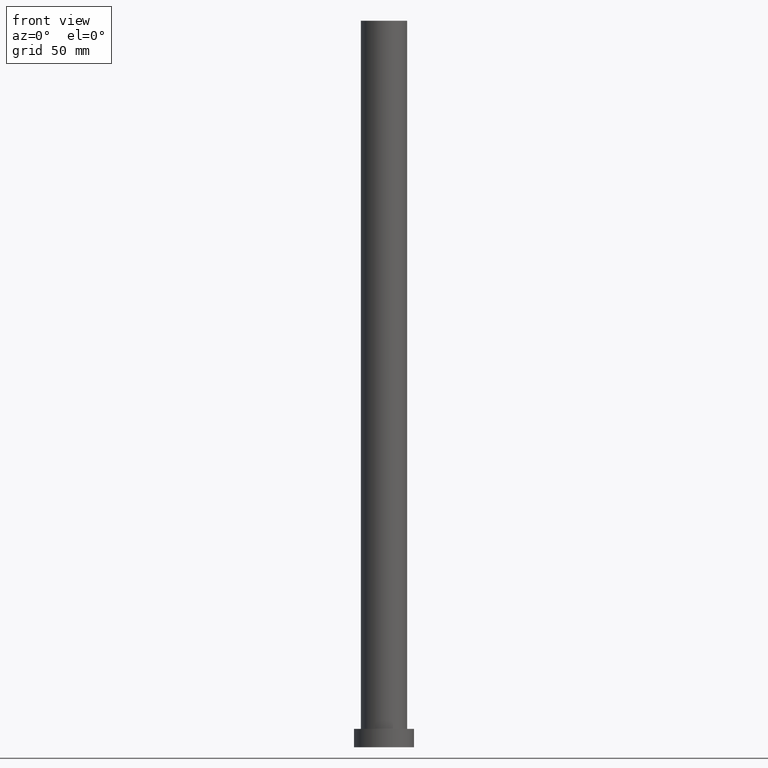
[diagram: clean part render]
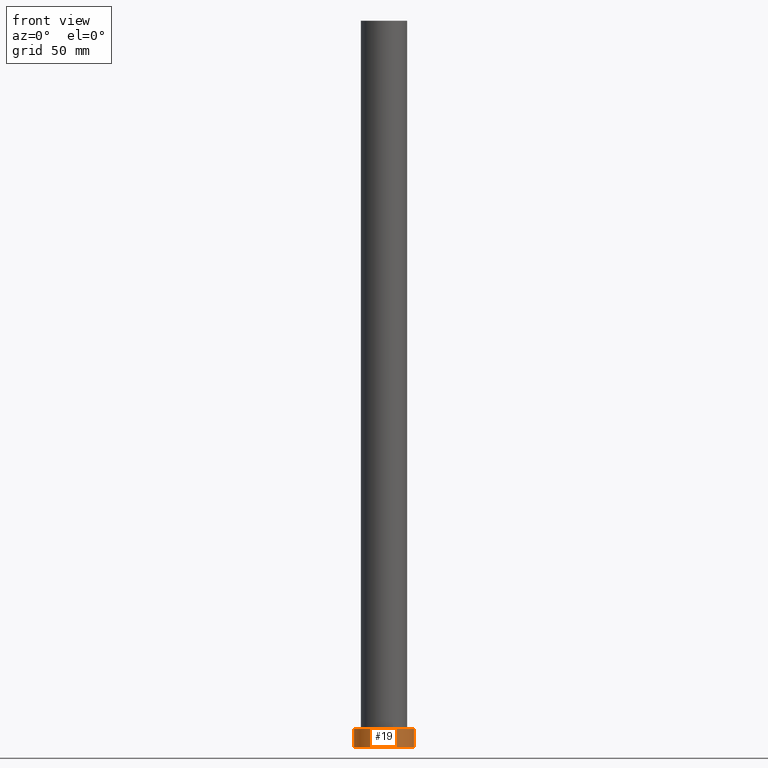
[diagram: same view with one face highlighted and labeled with its STEP entity id]
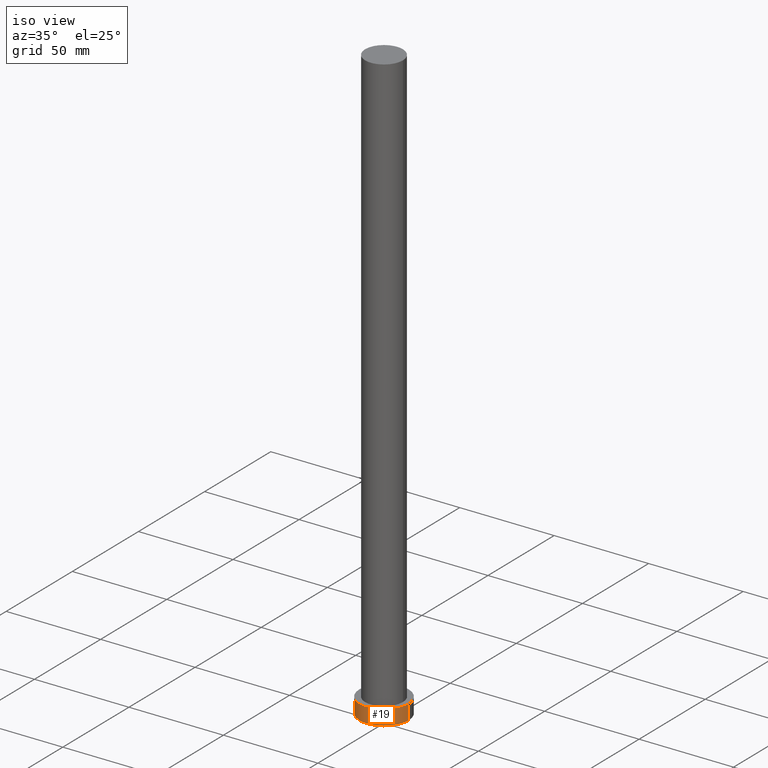
[diagram: same view with one face highlighted and labeled with its STEP entity id]
A machine part, front view. The second image highlights one B-rep face of the part: STEP entity #19.
A second angle (iso view) of the same face is appended — the face is thin or edge-on in the first view.
In plain terms, the highlighted cylindrical surface (edge-blend (fillet) strip) has radius 13 mm, axis along (-0, -0, -1).
Its self-contained STEP definition (entity closure, byte-faithful):
#1 = CARTESIAN_POINT ( 'NONE',  ( 13.00000000000000178, 1.592040838891559293E-15, 8.000000000000000000 ) ) ;
#4 = CARTESIAN_POINT ( 'NONE',  ( 13.00000000000000178, 1.592040838891559293E-15, 0.000000000000000000 ) ) ;
#7 = VERTEX_POINT ( 'NONE', #4 ) ;
#9 = VECTOR ( 'NONE', #221, 1000.000000000000000 ) ;
#19 = ADVANCED_FACE ( 'NONE', ( #224 ), #211, .T. ) ;
#20 = CARTESIAN_POINT ( 'NONE',  ( 13.00000000000000178, 1.592040838891559293E-15, 8.000000000000000000 ) ) ;
#23 = DIRECTION ( 'NONE',  ( -1.000000000000000000, 0.000000000000000000, 0.000000000000000000 ) ) ;
#33 = AXIS2_PLACEMENT_3D ( 'NONE', #39, #255, #135 ) ;
#39 = CARTESIAN_POINT ( 'NONE',  ( 0.000000000000000000, 0.000000000000000000, 0.000000000000000000 ) ) ;
#53 = DIRECTION ( 'NONE',  ( 0.000000000000000000, 0.000000000000000000, 1.000000000000000000 ) ) ;
#62 = DIRECTION ( 'NONE',  ( 1.000000000000000000, 0.000000000000000000, 0.000000000000000000 ) ) ;
#67 = VERTEX_POINT ( 'NONE', #204 ) ;
#81 = ORIENTED_EDGE ( 'NONE', *, *, #249, .T. ) ;
#83 = EDGE_CURVE ( 'NONE', #237, #7, #184, .T. ) ;
#104 = CARTESIAN_POINT ( 'NONE',  ( 0.000000000000000000, 0.000000000000000000, 8.000000000000000000 ) ) ;
#107 = CIRCLE ( 'NONE', #33, 13.00000000000000178 ) ;
#112 = EDGE_LOOP ( 'NONE', ( #160, #145, #141, #81 ) ) ;
#122 = VERTEX_POINT ( 'NONE', #253 ) ;
#135 = DIRECTION ( 'NONE',  ( 1.000000000000000000, 0.000000000000000000, 0.000000000000000000 ) ) ;
#141 = ORIENTED_EDGE ( 'NONE', *, *, #169, .T. ) ;
#143 = CIRCLE ( 'NONE', #187, 13.00000000000000178 ) ;
#145 = ORIENTED_EDGE ( 'NONE', *, *, #236, .F. ) ;
#149 = LINE ( 'NONE', #163, #230 ) ;
#160 = ORIENTED_EDGE ( 'NONE', *, *, #83, .F. ) ;
#163 = CARTESIAN_POINT ( 'NONE',  ( -13.00000000000000178, 0.000000000000000000, 8.000000000000000000 ) ) ;
#169 = EDGE_CURVE ( 'NONE', #122, #67, #149, .T. ) ;
#184 = LINE ( 'NONE', #1, #9 ) ;
#186 = CARTESIAN_POINT ( 'NONE',  ( 0.000000000000000000, 0.000000000000000000, 8.000000000000000000 ) ) ;
#187 = AXIS2_PLACEMENT_3D ( 'NONE', #104, #53, #62 ) ;
#189 = DIRECTION ( 'NONE',  ( -0.000000000000000000, -0.000000000000000000, -1.000000000000000000 ) ) ;
#204 = CARTESIAN_POINT ( 'NONE',  ( -13.00000000000000178, 0.000000000000000000, 0.000000000000000000 ) ) ;
#208 = DIRECTION ( 'NONE',  ( -0.000000000000000000, -0.000000000000000000, -1.000000000000000000 ) ) ;
#211 = CYLINDRICAL_SURFACE ( 'NONE', #212, 13.00000000000000178 ) ;
#212 = AXIS2_PLACEMENT_3D ( 'NONE', #186, #208, #23 ) ;
#221 = DIRECTION ( 'NONE',  ( -0.000000000000000000, -0.000000000000000000, -1.000000000000000000 ) ) ;
#224 = FACE_OUTER_BOUND ( 'NONE', #112, .T. ) ;
#230 = VECTOR ( 'NONE', #189, 1000.000000000000000 ) ;
#236 = EDGE_CURVE ( 'NONE', #122, #237, #143, .T. ) ;
#237 = VERTEX_POINT ( 'NONE', #20 ) ;
#249 = EDGE_CURVE ( 'NONE', #67, #7, #107, .T. ) ;
#253 = CARTESIAN_POINT ( 'NONE',  ( -13.00000000000000178, 0.000000000000000000, 8.000000000000000000 ) ) ;
#255 = DIRECTION ( 'NONE',  ( 0.000000000000000000, 0.000000000000000000, 1.000000000000000000 ) ) ;